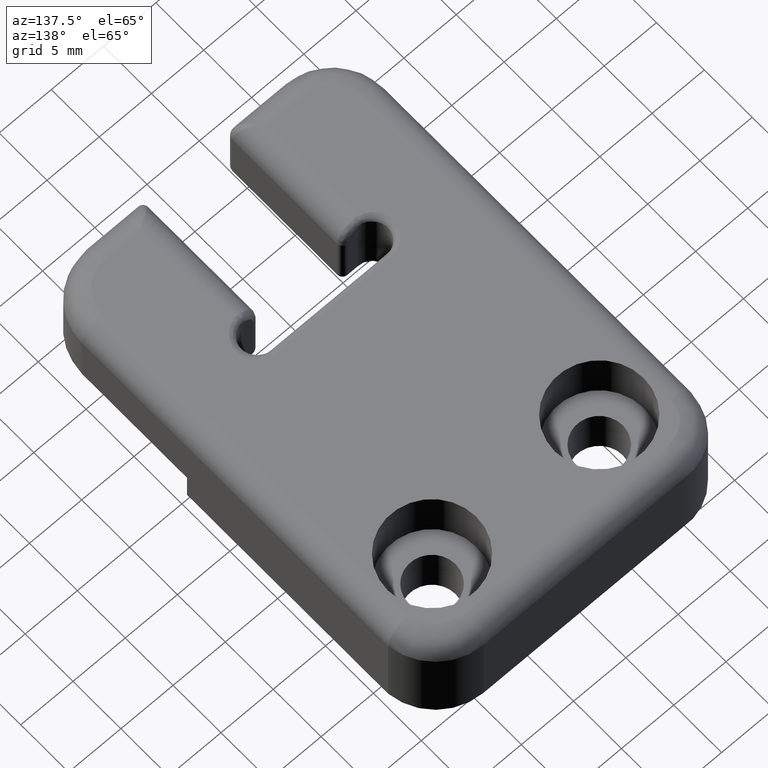
[diagram: clean part render]
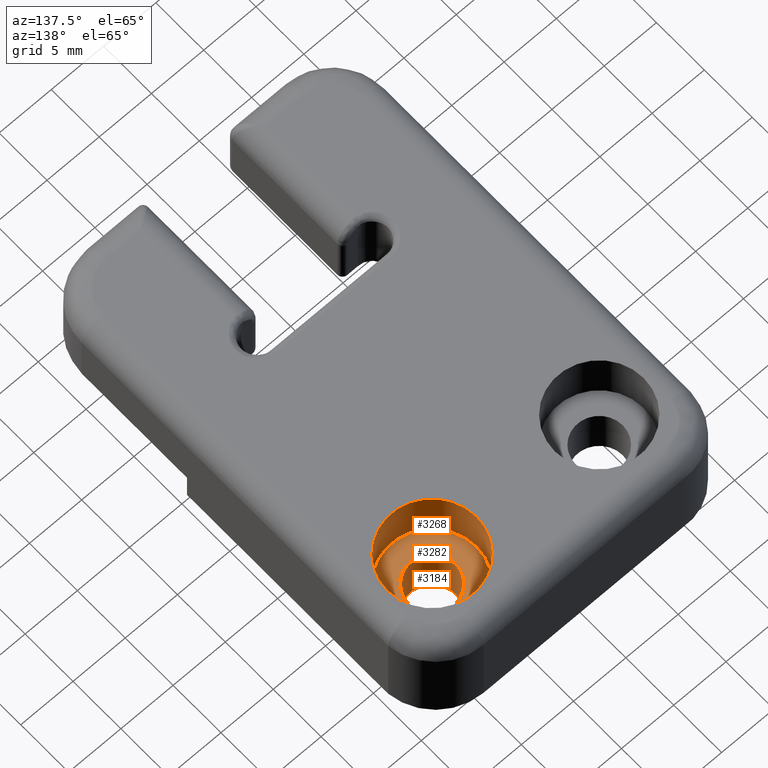
[diagram: same view with one multi-face feature highlighted, each face labeled with its STEP entity id]
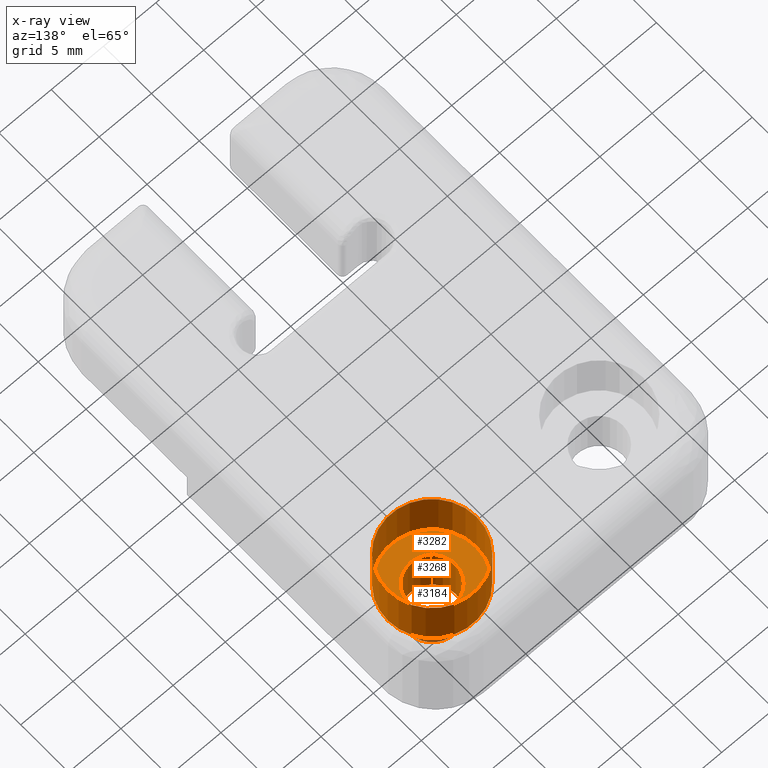
[diagram: x-ray of the same camera — body ghosted, the whole feature saturated]
A machine part, auxiliary view. The highlighted faces form ONE feature: a stepped (counterbored) hole: 2 coaxial cylindrical walls of radii 2.25 -> 4.25 mm joined by 1 annular planar shoulder face(s). The faces share edges in the B-rep.
The next image is the same camera in x-ray: the body ghosted and the whole hole feature saturated, so the bore chain is visible through the body.
Their STEP definitions:
[1] entity #3268 (Cylinder):
#999=CARTESIAN_POINT('',(3.749999999996817,18.496029532151681,10.0));
#1000=VERTEX_POINT('',#999);
#1001=CARTESIAN_POINT('',(12.249999999996817,18.496029532151681,10.0));
#1002=VERTEX_POINT('',#1001);
#1003=CARTESIAN_POINT('',(7.999999999996817,18.496029532151681,10.0));
#1004=DIRECTION('',(0.0,0.0,1.0));
#1005=DIRECTION('',(1.0,0.0,0.0));
#1006=AXIS2_PLACEMENT_3D('',#1003,#1004,#1005);
#1007=CIRCLE('',#1006,4.250000000000000);
#1008=EDGE_CURVE('',#1000,#1002,#1007,.T.);
#1010=CARTESIAN_POINT('',(7.999999999996817,18.496029532151681,10.0));
#1011=DIRECTION('',(0.0,0.0,1.0));
#1012=DIRECTION('',(1.0,0.0,0.0));
#1013=AXIS2_PLACEMENT_3D('',#1010,#1011,#1012);
#1014=CIRCLE('',#1013,4.250000000000000);
#1015=EDGE_CURVE('',#1002,#1000,#1014,.T.);
#3234=CARTESIAN_POINT('',(7.999999999996817,18.496029532151681,10.0));
#3235=DIRECTION('',(0.0,0.0,1.0));
#3236=DIRECTION('',(1.0,0.0,0.0));
#3237=AXIS2_PLACEMENT_3D('',#3234,#3235,#3236);
#3238=CYLINDRICAL_SURFACE('',#3237,4.250000000000000);
#3239=CARTESIAN_POINT('',(3.749999999996817,18.496029532151681,5.0));
#3240=VERTEX_POINT('',#3239);
#3241=CARTESIAN_POINT('',(12.249999999996817,18.496029532151681,5.0));
#3242=VERTEX_POINT('',#3241);
#3243=CARTESIAN_POINT('',(7.999999999996817,18.496029532151681,5.0));
#3244=DIRECTION('',(0.0,0.0,1.0));
#3245=DIRECTION('',(1.0,0.0,0.0));
#3246=AXIS2_PLACEMENT_3D('',#3243,#3244,#3245);
#3247=CIRCLE('',#3246,4.250000000000000);
#3248=EDGE_CURVE('',#3240,#3242,#3247,.T.);
#3249=ORIENTED_EDGE('',*,*,#3248,.F.);
#3250=CARTESIAN_POINT('',(7.999999999996817,18.496029532151681,5.0));
#3251=DIRECTION('',(0.0,0.0,1.0));
#3252=DIRECTION('',(1.0,0.0,0.0));
#3253=AXIS2_PLACEMENT_3D('',#3250,#3251,#3252);
#3254=CIRCLE('',#3253,4.250000000000000);
#3255=EDGE_CURVE('',#3242,#3240,#3254,.T.);
#3256=ORIENTED_EDGE('',*,*,#3255,.F.);
#3257=CARTESIAN_POINT('',(12.249999999996817,18.496029532151681,10.0));
#3258=DIRECTION('',(0.0,0.0,-1.0));
#3259=VECTOR('',#3258,5.0);
#3260=LINE('',#3257,#3259);
#3261=EDGE_CURVE('',#1002,#3242,#3260,.T.);
#3262=ORIENTED_EDGE('',*,*,#3261,.F.);
#3263=ORIENTED_EDGE('',*,*,#1015,.T.);
#3264=ORIENTED_EDGE('',*,*,#1008,.T.);
#3265=ORIENTED_EDGE('',*,*,#3261,.T.);
#3266=EDGE_LOOP('',(#3249,#3256,#3262,#3263,#3264,#3265));
#3267=FACE_OUTER_BOUND('',#3266,.T.);
#3268=ADVANCED_FACE('',(#3267),#3238,.F.);
[2] entity #3184 (Cylinder):
#79=CARTESIAN_POINT('',(5.749999999996817,18.496029532151681,0.0));
#80=VERTEX_POINT('',#79);
#81=CARTESIAN_POINT('',(10.249999999996817,18.496029532151681,0.0));
#82=VERTEX_POINT('',#81);
#83=CARTESIAN_POINT('',(7.999999999996817,18.496029532151681,0.0));
#84=DIRECTION('',(0.0,0.0,-1.0));
#85=DIRECTION('',(1.0,0.0,0.0));
#86=AXIS2_PLACEMENT_3D('',#83,#84,#85);
#87=CIRCLE('',#86,2.250000000000000);
#88=EDGE_CURVE('',#80,#82,#87,.T.);
#90=CARTESIAN_POINT('',(7.999999999996817,18.496029532151681,0.0));
#91=DIRECTION('',(0.0,0.0,-1.0));
#92=DIRECTION('',(1.0,0.0,0.0));
#93=AXIS2_PLACEMENT_3D('',#90,#91,#92);
#94=CIRCLE('',#93,2.250000000000000);
#95=EDGE_CURVE('',#82,#80,#94,.T.);
#3150=CARTESIAN_POINT('',(7.999999999996817,18.496029532151681,10.0));
#3151=DIRECTION('',(0.0,0.0,1.0));
#3152=DIRECTION('',(1.0,0.0,0.0));
#3153=AXIS2_PLACEMENT_3D('',#3150,#3151,#3152);
#3154=CYLINDRICAL_SURFACE('',#3153,2.250000000000000);
#3155=ORIENTED_EDGE('',*,*,#95,.T.);
#3156=ORIENTED_EDGE('',*,*,#88,.T.);
#3157=CARTESIAN_POINT('',(10.249999999996817,18.496029532151681,5.0));
#3158=VERTEX_POINT('',#3157);
#3159=CARTESIAN_POINT('',(10.249999999996817,18.496029532151681,5.0));
#3160=DIRECTION('',(0.0,0.0,-1.0));
#3161=VECTOR('',#3160,5.0);
#3162=LINE('',#3159,#3161);
#3163=EDGE_CURVE('',#3158,#82,#3162,.T.);
#3164=ORIENTED_EDGE('',*,*,#3163,.F.);
#3165=CARTESIAN_POINT('',(5.749999999996817,18.496029532151681,5.0));
#3166=VERTEX_POINT('',#3165);
#3167=CARTESIAN_POINT('',(7.999999999996817,18.496029532151681,5.0));
#3168=DIRECTION('',(0.0,0.0,1.0));
#3169=DIRECTION('',(1.0,0.0,0.0));
#3170=AXIS2_PLACEMENT_3D('',#3167,#3168,#3169);
#3171=CIRCLE('',#3170,2.250000000000000);
#3172=EDGE_CURVE('',#3158,#3166,#3171,.T.);
#3173=ORIENTED_EDGE('',*,*,#3172,.T.);
#3174=CARTESIAN_POINT('',(7.999999999996817,18.496029532151681,5.0));
#3175=DIRECTION('',(0.0,0.0,1.0));
#3176=DIRECTION('',(1.0,0.0,0.0));
#3177=AXIS2_PLACEMENT_3D('',#3174,#3175,#3176);
#3178=CIRCLE('',#3177,2.250000000000000);
#3179=EDGE_CURVE('',#3166,#3158,#3178,.T.);
#3180=ORIENTED_EDGE('',*,*,#3179,.T.);
#3181=ORIENTED_EDGE('',*,*,#3163,.T.);
#3182=EDGE_LOOP('',(#3155,#3156,#3164,#3173,#3180,#3181));
#3183=FACE_OUTER_BOUND('',#3182,.T.);
#3184=ADVANCED_FACE('',(#3183),#3154,.F.);
[3] entity #3282 (Plane):
#3157=CARTESIAN_POINT('',(10.249999999996817,18.496029532151681,5.0));
#3158=VERTEX_POINT('',#3157);
#3165=CARTESIAN_POINT('',(5.749999999996817,18.496029532151681,5.0));
#3166=VERTEX_POINT('',#3165);
#3167=CARTESIAN_POINT('',(7.999999999996817,18.496029532151681,5.0));
#3168=DIRECTION('',(0.0,0.0,1.0));
#3169=DIRECTION('',(1.0,0.0,0.0));
#3170=AXIS2_PLACEMENT_3D('',#3167,#3168,#3169);
#3171=CIRCLE('',#3170,2.250000000000000);
#3172=EDGE_CURVE('',#3158,#3166,#3171,.T.);
#3174=CARTESIAN_POINT('',(7.999999999996817,18.496029532151681,5.0));
#3175=DIRECTION('',(0.0,0.0,1.0));
#3176=DIRECTION('',(1.0,0.0,0.0));
#3177=AXIS2_PLACEMENT_3D('',#3174,#3175,#3176);
#3178=CIRCLE('',#3177,2.250000000000000);
#3179=EDGE_CURVE('',#3166,#3158,#3178,.T.);
#3239=CARTESIAN_POINT('',(3.749999999996817,18.496029532151681,5.0));
#3240=VERTEX_POINT('',#3239);
#3241=CARTESIAN_POINT('',(12.249999999996817,18.496029532151681,5.0));
#3242=VERTEX_POINT('',#3241);
#3243=CARTESIAN_POINT('',(7.999999999996817,18.496029532151681,5.0));
#3244=DIRECTION('',(0.0,0.0,1.0));
#3245=DIRECTION('',(1.0,0.0,0.0));
#3246=AXIS2_PLACEMENT_3D('',#3243,#3244,#3245);
#3247=CIRCLE('',#3246,4.250000000000000);
#3248=EDGE_CURVE('',#3240,#3242,#3247,.T.);
#3250=CARTESIAN_POINT('',(7.999999999996817,18.496029532151681,5.0));
#3251=DIRECTION('',(0.0,0.0,1.0));
#3252=DIRECTION('',(1.0,0.0,0.0));
#3253=AXIS2_PLACEMENT_3D('',#3250,#3251,#3252);
#3254=CIRCLE('',#3253,4.250000000000000);
#3255=EDGE_CURVE('',#3242,#3240,#3254,.T.);
#3269=CARTESIAN_POINT('',(13.102590963349485,13.393438568788781,5.0));
#3270=DIRECTION('',(0.0,0.0,1.0));
#3271=DIRECTION('',(0.0,1.0,0.0));
#3272=AXIS2_PLACEMENT_3D('',#3269,#3270,#3271);
#3273=PLANE('',#3272);
#3274=ORIENTED_EDGE('',*,*,#3255,.T.);
#3275=ORIENTED_EDGE('',*,*,#3248,.T.);
#3276=EDGE_LOOP('',(#3274,#3275));
#3277=FACE_OUTER_BOUND('',#3276,.T.);
#3278=ORIENTED_EDGE('',*,*,#3179,.F.);
#3279=ORIENTED_EDGE('',*,*,#3172,.F.);
#3280=EDGE_LOOP('',(#3278,#3279));
#3281=FACE_BOUND('',#3280,.T.);
#3282=ADVANCED_FACE('',(#3277,#3281),#3273,.T.);